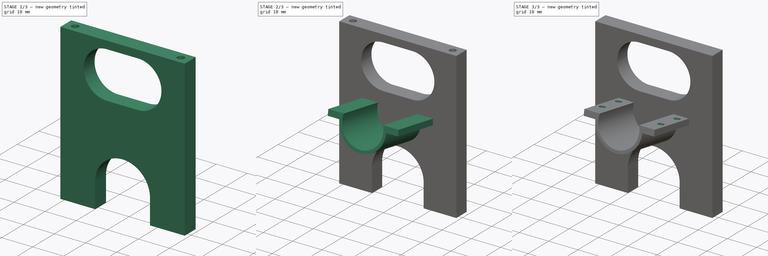
[diagram: build sequence overview — one tinted view per stage of 3, left to right]
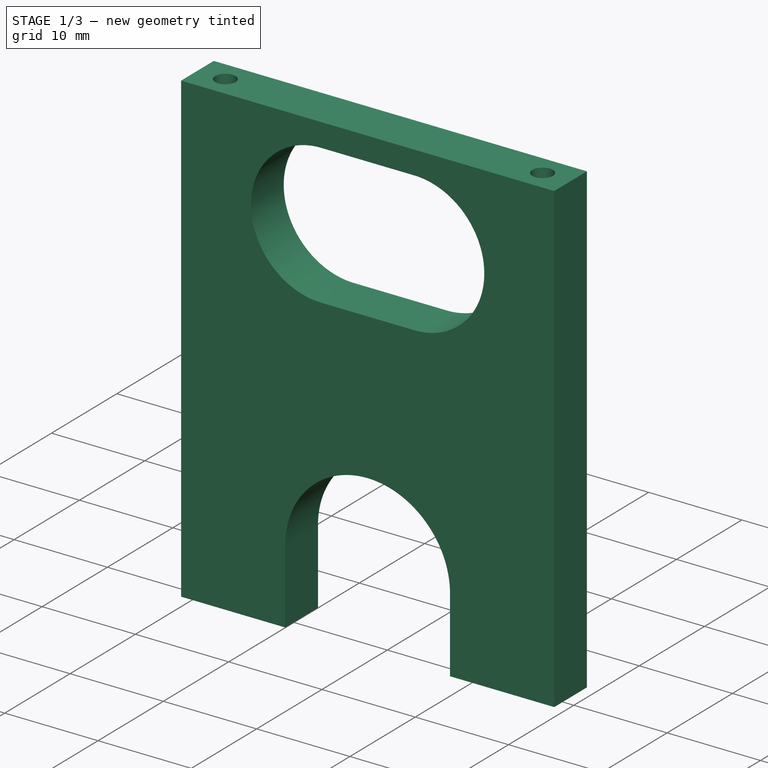
[diagram: stage 1 of 3 — iso view after this stage's code; geometry added in this stage tinted green]
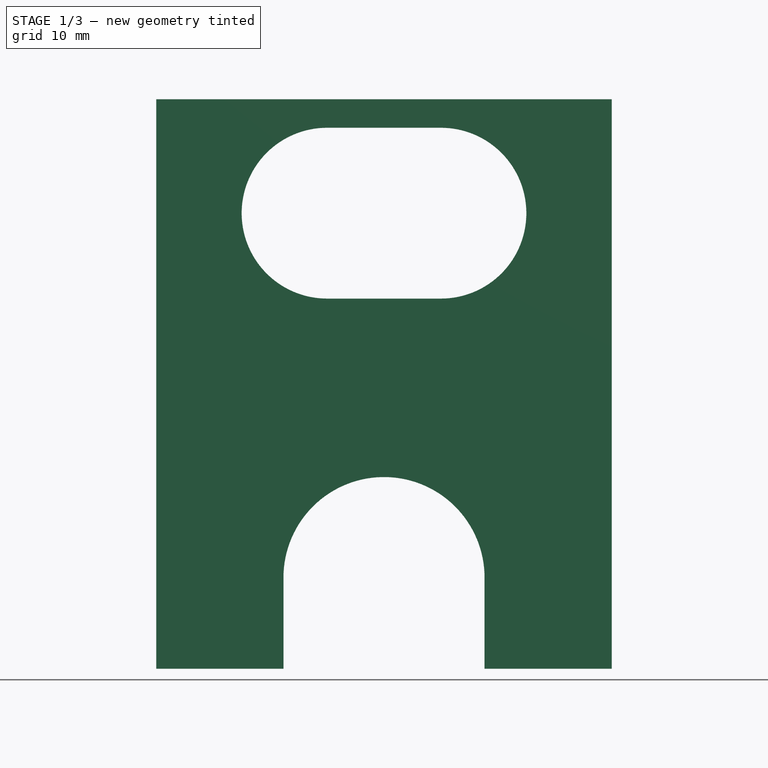
[diagram: stage 1 of 3 — front view after this stage's code; geometry added in this stage tinted green]
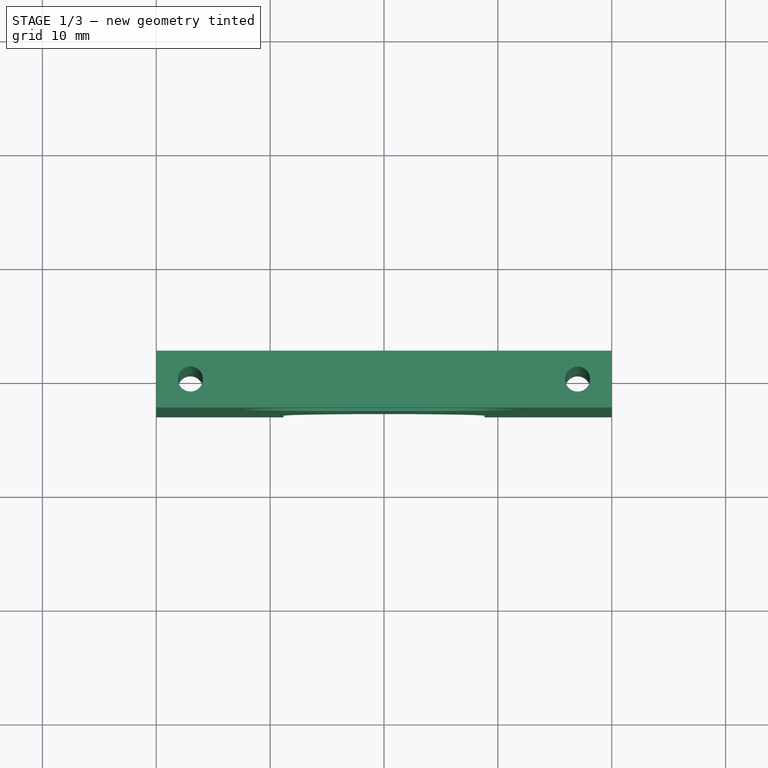
[diagram: stage 1 of 3 — top view after this stage's code; geometry added in this stage tinted green]
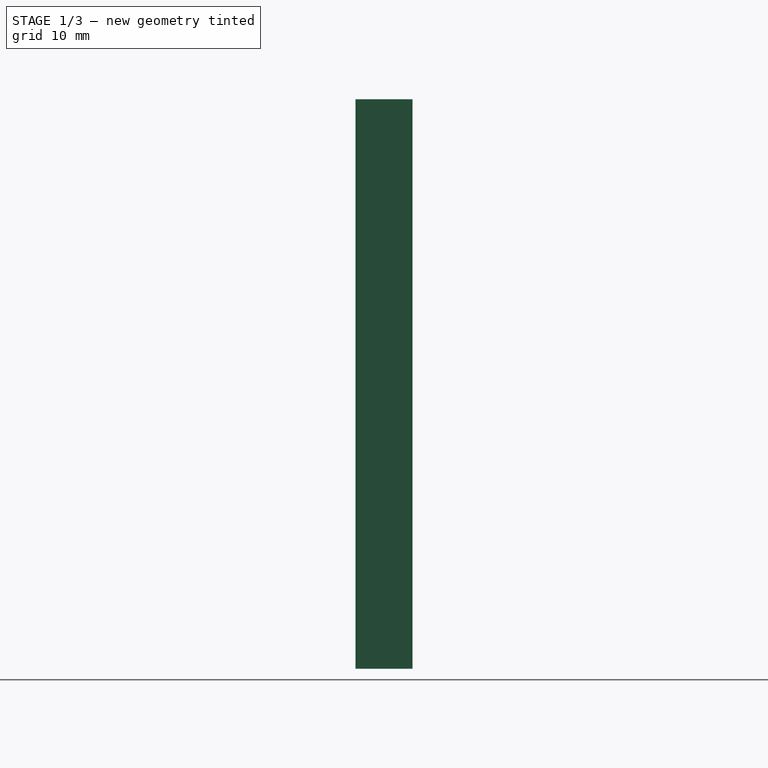
[diagram: stage 1 of 3 — right view after this stage's code; geometry added in this stage tinted green]
FCSTD DOCUMENT  (FreeCAD 0.15R4671 (Git))
Label: bracket3
License: All rights reserved
LicenseURL: http://en.wikipedia.org/wiki/All_rights_reserved
objects: Sketcher::SketchObject×7, PartDesign::Pocket×5, PartDesign::Pad×1, Part::Box×1, Part::Fuse×1
note: 21 computed .brp shape members not serialized (recipe doc carries the construction recipe); baked Part::Feature solids carry a one-line shape summary decoded from their .brp

FEATURE [Part::Box] Box  label="Cube"
  Height = 50
  Length = 40
  Placement = pos=(-20,-3,-28) rot=(0,0,1;0rad)
  Width = 5
FEATURE [Sketcher::SketchObject] Sketch004
  Placement = pos=(-20,-3,-28) rot=(1,0,0;1.5708rad)
  Support = -> Box [Face3]
FEATURE [Sketcher::SketchObject] Sketch005
  ExternalGeometry = -> [Box]
  Placement = pos=(-20,-3,-28) rot=(1,0,0;1.5708rad)
  Support = -> Box [Face3]
  sketch-geometry (11):
    g0: LineSegment [constr] StartX=20 StartY=50 StartZ=0 EndX=20 EndY=0 EndZ=0
    g1: LineSegment [constr] StartX=20 StartY=50 StartZ=0 EndX=0 EndY=50 EndZ=0
    g2: LineSegment [constr] StartX=20 StartY=50 StartZ=0 EndX=40 EndY=50 EndZ=0
    g3: ArcOfCircle CenterX=25 CenterY=40 CenterZ=0 NormalX=0 NormalY=0 NormalZ=1 Radius=7.5 StartAngle=4.71239 EndAngle=7.85398
    g4: ArcOfCircle CenterX=15 CenterY=40 CenterZ=0 NormalX=0 NormalY=0 NormalZ=1 Radius=7.5 StartAngle=1.5708 EndAngle=4.71239
    g5: LineSegment StartX=25 StartY=47.5 StartZ=0 EndX=15 EndY=47.5 EndZ=0
    g6: LineSegment StartX=25 StartY=32.5 StartZ=0 EndX=15 EndY=32.5 EndZ=0
    g7: ArcOfCircle CenterX=20 CenterY=8 CenterZ=0 NormalX=0 NormalY=0 NormalZ=1 Radius=8.82985 StartAngle=0 EndAngle=3.14159
    g8: LineSegment StartX=11.1701 StartY=8 StartZ=0 EndX=11.1701 EndY=0 EndZ=0
    g9: LineSegment StartX=11.1701 StartY=0 StartZ=0 EndX=28.8299 EndY=0 EndZ=0
    g10: LineSegment StartX=28.8299 StartY=8 StartZ=0 EndX=28.8299 EndY=0 EndZ=0
  constraints (32):
    c: PointOnObject(g0,g-1)
    c: Coincident(g1,g0)
    c: Horizontal(g1)
    c: Coincident(g2,g0)
    c: Horizontal(g2)
    c: Equal(g1,g2)
    c: PointOnObject(g1,g-2)
    c: Coincident(g2,g-3)
    c: Tangent(g3,g6) = 1.5708
    c: Tangent(g3,g5) = -1.5708
    c: Tangent(g5,g4) = -1.5708
    c: Tangent(g6,g4) = 1.5708
    c: Horizontal(g5)
    c: Equal(g3,g4)
    c: Symmetric(g4,g3,g0)
    c: Equal(g6,g5)
    c: Distance(g6) = 10
    c: Radius(g4) = 7.5
    c: DistanceY(g3,g0) = 10
    c: PointOnObject(g7,g0)
    c: Coincident(g8,g7)
    c: PointOnObject(g8,g-1)
    c: Vertical(g8)
    c: Coincident(g9,g8)
    c: PointOnObject(g9,g-1)
    c: Coincident(g10,g7)
    c: Coincident(g10,g9)
    c: Vertical(g10)
    c: Equal(g8,g10)
    c: Distance(g9) = 17.6597
    c: Angle(g7) = 3.14159
    c: Distance(g8) = 8
FEATURE [PartDesign::Pocket] Pocket003
  Length = 5
  Placement = pos=(-20,-3,-28) rot=(0,0,1;0rad)
  Sketch = -> Sketch005
  Type = 1
FEATURE [Sketcher::SketchObject] Sketch006
  ExternalGeometry = -> [Pocket003]
  Placement = pos=(-20,-3,22) rot=(0,0,1;0rad)
  Support = -> Pocket003 [Face3]
  sketch-geometry (4):
    g0: LineSegment [constr] StartX=20 StartY=5 StartZ=0 EndX=20 EndY=0 EndZ=0
    g1: LineSegment [constr] StartX=0 StartY=2.5 StartZ=0 EndX=40 EndY=2.5 EndZ=0
    g2: Circle CenterX=3 CenterY=2.5 CenterZ=0 NormalX=0 NormalY=0 NormalZ=1 Radius=1.1
    g3: Circle CenterX=37 CenterY=2.5 CenterZ=0 NormalX=0 NormalY=0 NormalZ=1 Radius=1.1
  constraints (14):
    c: Vertical(g0)
    c: DistanceX(g-1,g0) = 20
    c: Horizontal(g1)
    c: DistanceY(g-1,g1) = 2.5
    c: PointOnObject(g2,g1)
    c: PointOnObject(g3,g1)
    c: Symmetric(g2,g3,g0)
    c: DistanceX(g2,g3) = 34
    c: Equal(g2,g3)
    c: Radius(g2) = 1.1
    c: PointOnObject(g1,g-3)
    c: PointOnObject(g1,g-2)
    c: PointOnObject(g0,g-4)
    c: PointOnObject(g0,g-1)
FEATURE [PartDesign::Pocket] Pocket004
  Length = 5
  Placement = pos=(-20,-3,-28) rot=(0,0,1;0rad)
  Sketch = -> Sketch006
  Type = 1
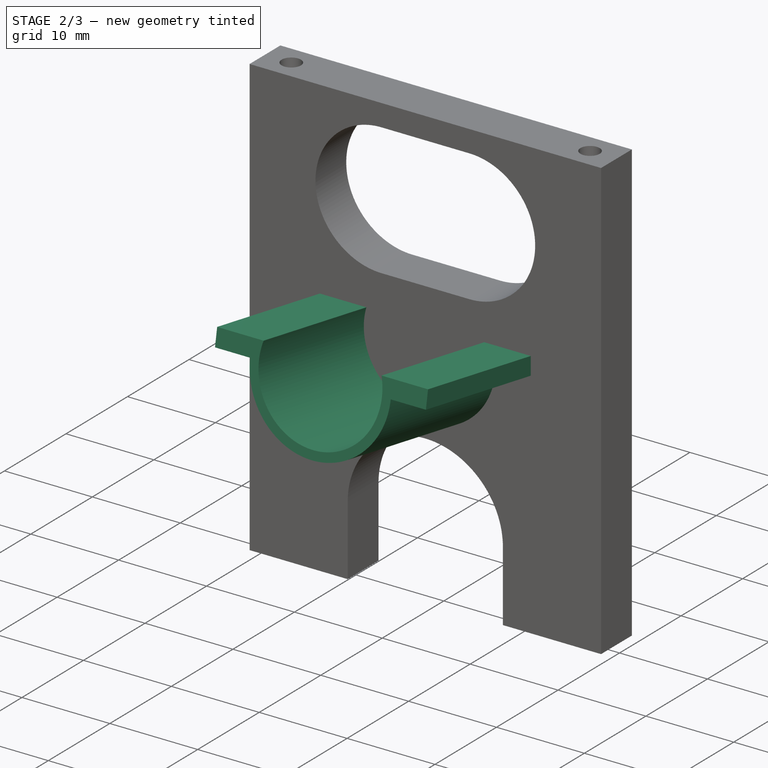
[diagram: stage 2 of 3 — iso view after this stage's code; geometry added in this stage tinted green]
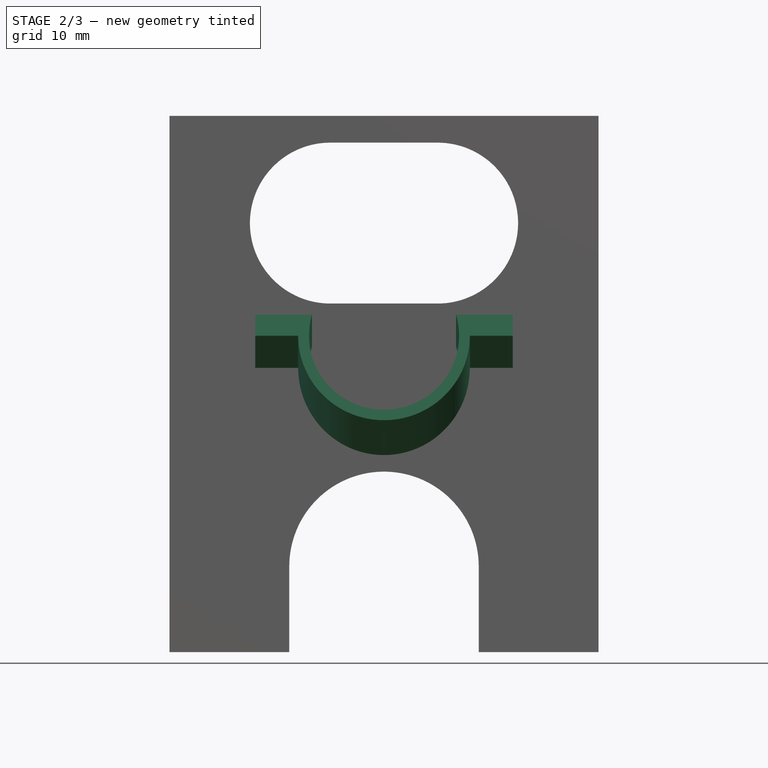
[diagram: stage 2 of 3 — front view after this stage's code; geometry added in this stage tinted green]
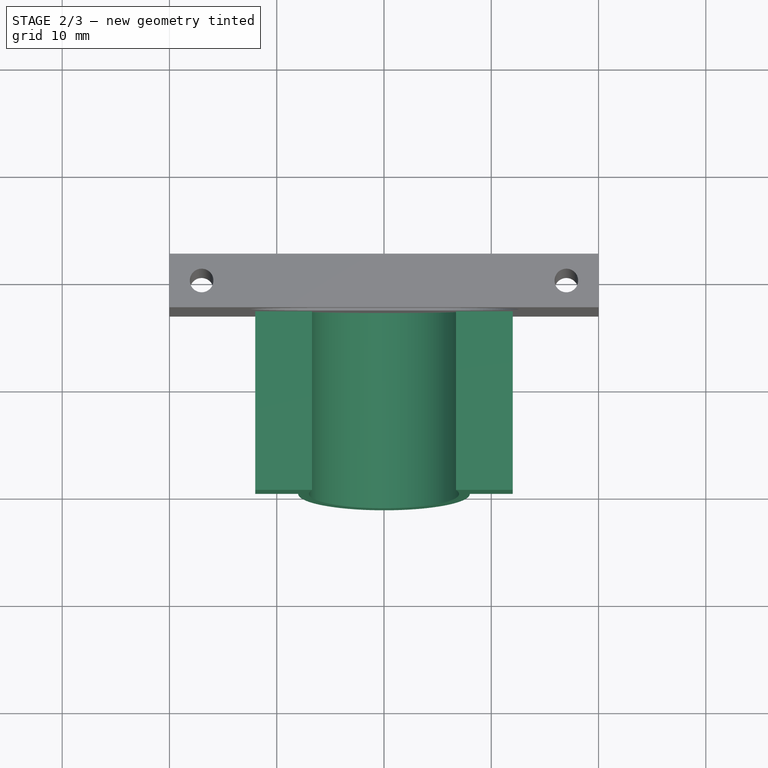
[diagram: stage 2 of 3 — top view after this stage's code; geometry added in this stage tinted green]
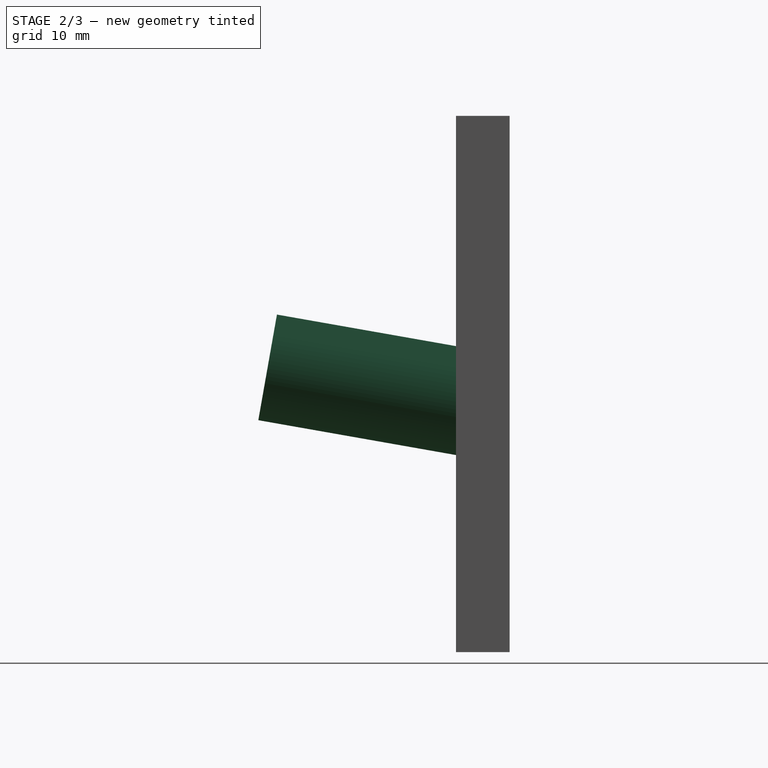
[diagram: stage 2 of 3 — right view after this stage's code; geometry added in this stage tinted green]
FEATURE [Sketcher::SketchObject] Sketch
  Placement = pos=(0,0,0) rot=(1,0,0;1.39626rad)
  sketch-geometry (6):
    g0: LineSegment StartX=-12 StartY=0 StartZ=0 EndX=-12 EndY=-2 EndZ=0
    g1: LineSegment StartX=-12 StartY=-2 StartZ=0 EndX=-8 EndY=-2 EndZ=0
    g2: LineSegment StartX=-12 StartY=0 StartZ=0 EndX=12 EndY=0 EndZ=0
    g3: LineSegment StartX=12 StartY=0 StartZ=0 EndX=12 EndY=-2 EndZ=0
    g4: LineSegment StartX=12 StartY=-2 StartZ=0 EndX=8 EndY=-2 EndZ=0
    g5: ArcOfCircle CenterX=0 CenterY=-2 CenterZ=0 NormalX=0 NormalY=0 NormalZ=1 Radius=8 StartAngle=3.14159 EndAngle=6.28319
  constraints (18):
    c: Vertical(g0)
    c: Coincident(g0,g1)
    c: Horizontal(g1)
    c: Coincident(g0,g2)
    c: Horizontal(g2)
    c: Coincident(g2,g3)
    c: Vertical(g3)
    c: Coincident(g3,g4)
    c: Horizontal(g4)
    c: Symmetric(g0,g2,g-2)
    c: Symmetric(g1,g4,g-2)
    c: Coincident(g5,g1)
    c: Coincident(g5,g4)
    c: Radius(g5) = 8
    c: Distance(g0) = 2
    c: PointOnObject(g5,g4)
    c: PointOnObject(g-1,g2)
    c: DistanceX(g-1,g0) = -12
FEATURE [PartDesign::Pad] Pad
  Length = 20
  Length2 = 100
  Placement = pos=(0,0,0) rot=(1,0,0;1.39626rad)
  Sketch = -> Sketch
  Type = 0
FEATURE [Sketcher::SketchObject] Sketch001
  ExternalGeometry = -> [Pad]
  Placement = pos=(0,-19.6962,3.47296) rot=(1,0,0;1.39626rad)
  Support = -> Pad [Face8]
  sketch-geometry (2):
    g0: ArcOfCircle CenterX=0 CenterY=-2 CenterZ=0 NormalX=0 NormalY=0 NormalZ=1 Radius=7 StartAngle=2.85184 EndAngle=6.57294
    g1: LineSegment StartX=-6.7082 StartY=-2e-12 StartZ=0 EndX=6.7082 EndY=-4e-12 EndZ=0
  constraints (7):
    c: PointOnObject(g0,g-2)
    c: PointOnObject(g0,g-1)
    c: PointOnObject(g0,g-1)
    c: Radius(g0) = 7
    c: PointOnObject(g0,g-3)
    c: Coincident(g1,g0)
    c: Coincident(g1,g0)
FEATURE [PartDesign::Pocket] Pocket
  Length = 5
  Placement = pos=(0,0,0) rot=(1,0,0;1.39626rad)
  Sketch = -> Sketch001
  Type = 1
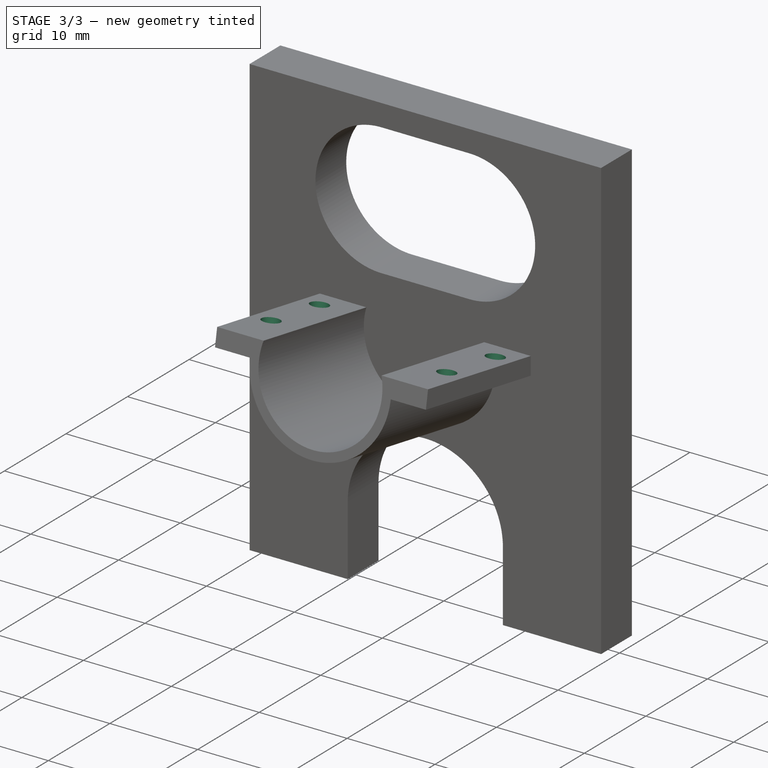
[diagram: stage 3 of 3 — iso view after this stage's code; geometry added in this stage tinted green]
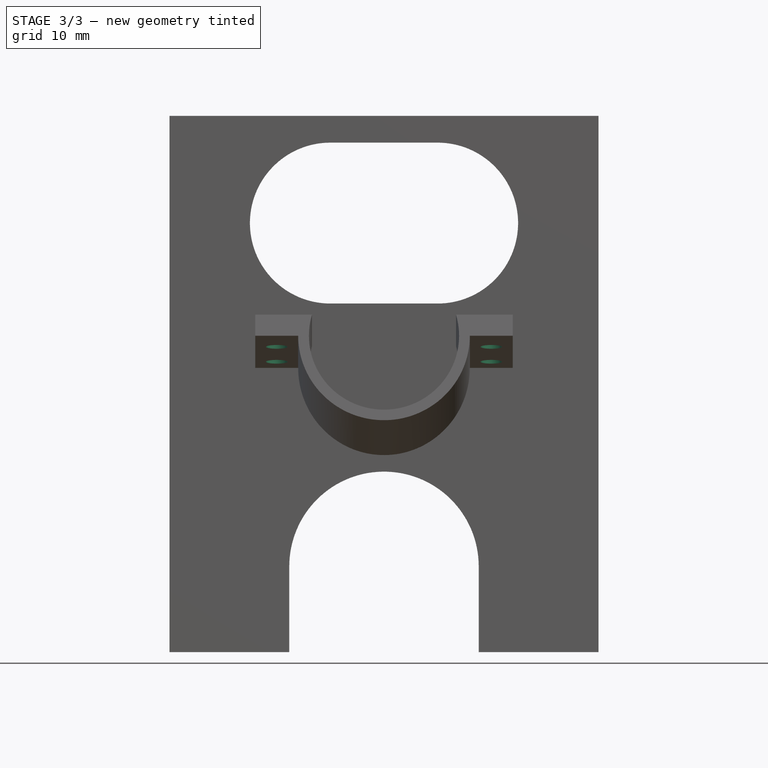
[diagram: stage 3 of 3 — front view after this stage's code; geometry added in this stage tinted green]
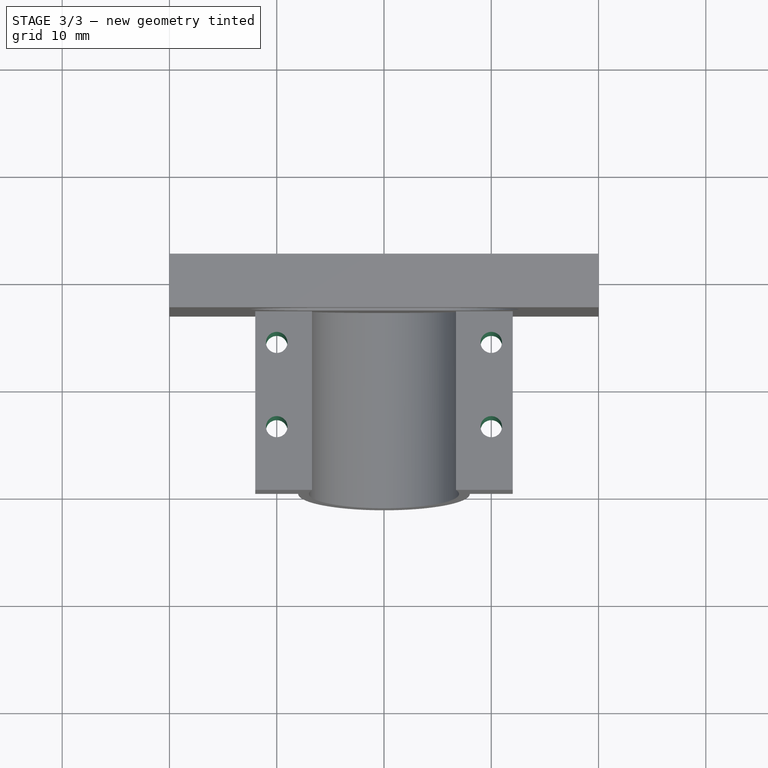
[diagram: stage 3 of 3 — top view after this stage's code; geometry added in this stage tinted green]
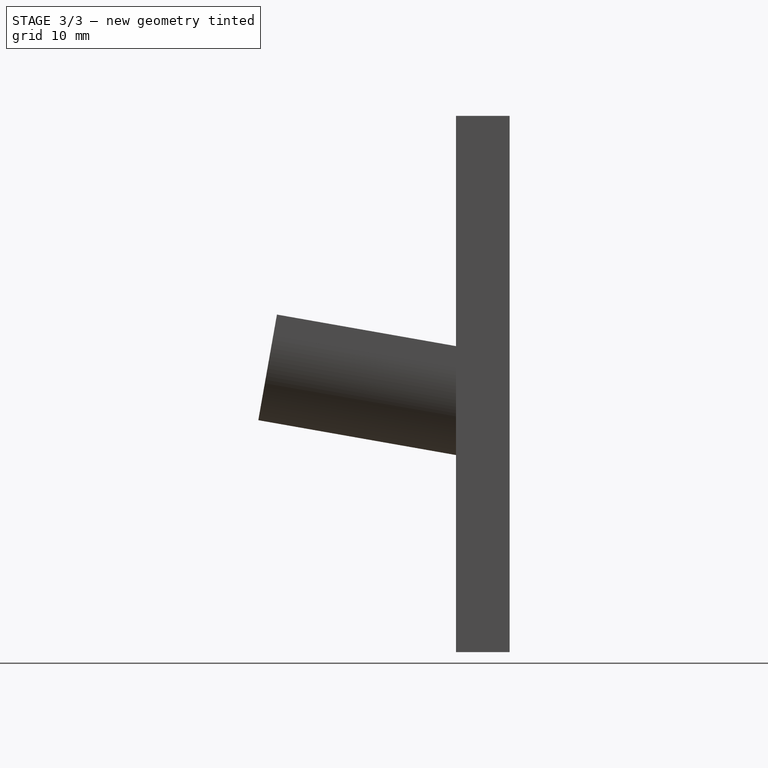
[diagram: stage 3 of 3 — right view after this stage's code; geometry added in this stage tinted green]
FEATURE [Sketcher::SketchObject] Sketch002
  ExternalGeometry = -> [Pocket]
  Placement = pos=(0,-0.347296,-1.96962) rot=(1,0,0;2.96706rad)
  Support = -> Pocket [Face3]
  sketch-geometry (10):
    g0: LineSegment [constr] StartX=-10 StartY=14 StartZ=0 EndX=-10 EndY=6 EndZ=0
    g1: LineSegment [constr] StartX=10 StartY=14 StartZ=0 EndX=10 EndY=6 EndZ=0
    g2: LineSegment [constr] StartX=-10 StartY=6 StartZ=0 EndX=-10 EndY=0 EndZ=0
    g3: LineSegment [constr] StartX=-10 StartY=14 StartZ=0 EndX=-10 EndY=20 EndZ=0
    g4: LineSegment [constr] StartX=-10 StartY=6 StartZ=0 EndX=-8 EndY=6 EndZ=0
    g5: LineSegment [constr] StartX=-10 StartY=6 StartZ=0 EndX=-12 EndY=6 EndZ=0
    g6: Circle CenterX=-10 CenterY=14 CenterZ=0 NormalX=0 NormalY=0 NormalZ=1 Radius=1
    g7: Circle CenterX=-10 CenterY=6 CenterZ=0 NormalX=0 NormalY=0 NormalZ=1 Radius=1
    g8: Circle CenterX=10 CenterY=14 CenterZ=0 NormalX=0 NormalY=0 NormalZ=1 Radius=1
    g9: Circle CenterX=10 CenterY=6 CenterZ=0 NormalX=0 NormalY=0 NormalZ=1 Radius=1
  constraints (27):
    c: Vertical(g0)
    c: Vertical(g1)
    c: Symmetric(g0,g1,g-2)
    c: Equal(g0,g1)
    c: Coincident(g2,g0)
    c: PointOnObject(g2,g-1)
    c: Vertical(g2)
    c: Coincident(g3,g0)
    c: PointOnObject(g3,g-3)
    c: Vertical(g3)
    c: Equal(g3,g2)
    c: Coincident(g4,g0)
    c: PointOnObject(g4,g-5)
    c: Horizontal(g4)
    c: Coincident(g5,g0)
    c: PointOnObject(g5,g-4)
    c: Horizontal(g5)
    c: Equal(g5,g4)
    c: Distance(g2) = 6
    c: Coincident(g6,g0)
    c: Radius(g6) = 1
    c: Coincident(g7,g0)
    c: Coincident(g8,g1)
    c: Coincident(g9,g1)
    c: Equal(g6,g7)
    c: Equal(g7,g9)
    c: Equal(g9,g8)
FEATURE [PartDesign::Pocket] Pocket001
  Length = 5
  Placement = pos=(0,0,0) rot=(1,0,0;1.39626rad)
  Sketch = -> Sketch002
  Type = 1
FEATURE [Sketcher::SketchObject] Sketch003
  Placement = pos=(12,0,0) rot=(0.705758,0.061746,0.705758;3.01826rad)
  Support = -> Pocket001 [Face11]
  sketch-geometry (3):
    g0: LineSegment StartX=-10 StartY=0 StartZ=0 EndX=0 EndY=1.76327 EndZ=0
    g1: LineSegment StartX=-10 StartY=0 StartZ=0 EndX=0 EndY=0 EndZ=0
    g2: LineSegment StartX=0 StartY=1.76327 StartZ=0 EndX=0 EndY=0 EndZ=0
  constraints (8):
    c: PointOnObject(g0,g-1)
    c: PointOnObject(g0,g-2)
    c: Angle(g0,g-1) = 2.96706
    c: Coincident(g1,g0)
    c: Coincident(g1,g-1)
    c: Coincident(g2,g0)
    c: Coincident(g2,g-1)
    c: Distance(g1) = 10
FEATURE [PartDesign::Pocket] Pocket002
  Length = 5
  Placement = pos=(0,0,0) rot=(1,0,0;1.39626rad)
  Sketch = -> Sketch003
  Type = 1
FEATURE [Part::Fuse] Fusion001
  Base = -> Pocket002
  Tool = -> Pocket003
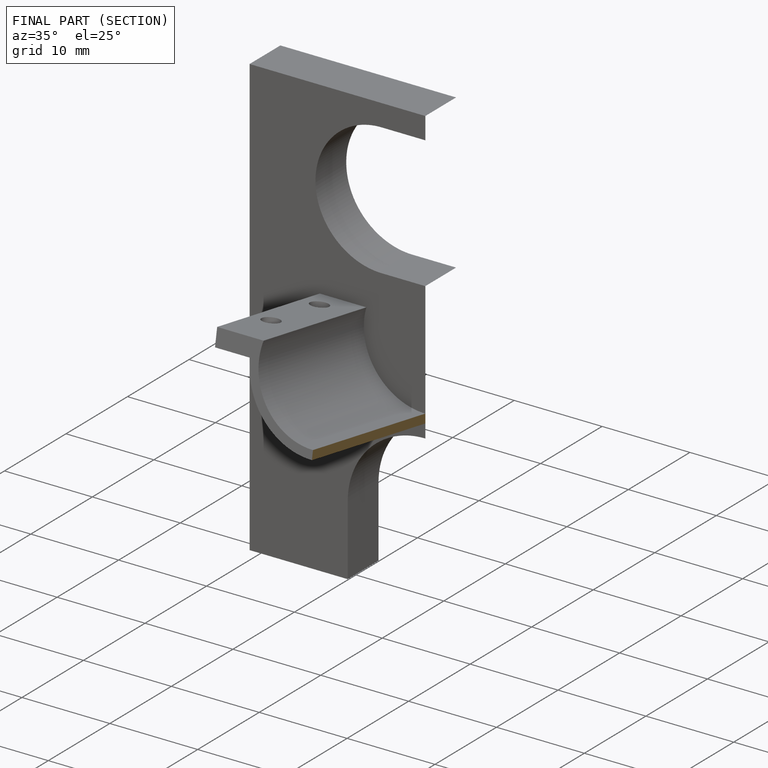
[diagram: finished part — half-section view (interior)]
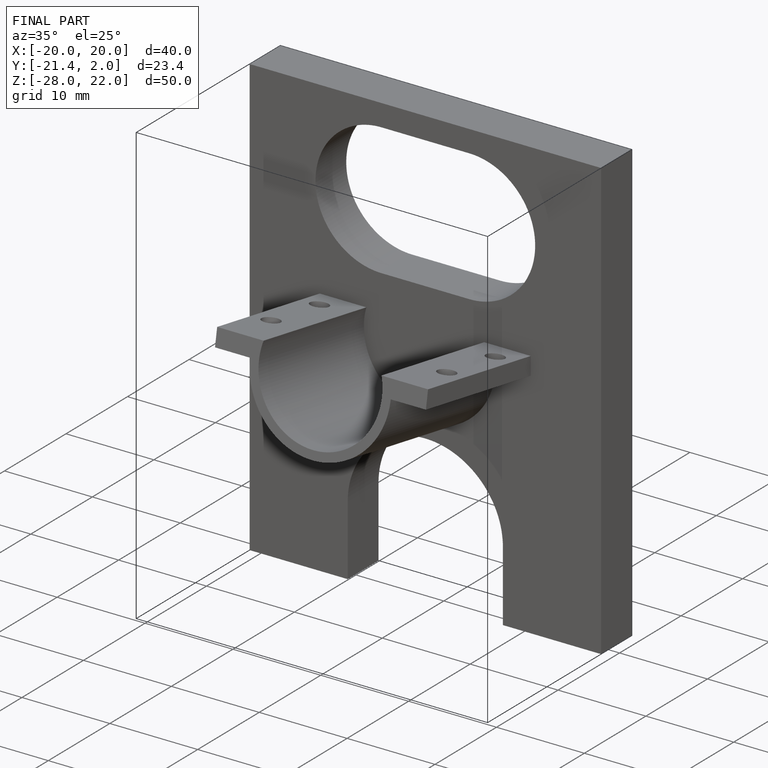
[diagram: finished part — iso view with bounding-box wireframe]
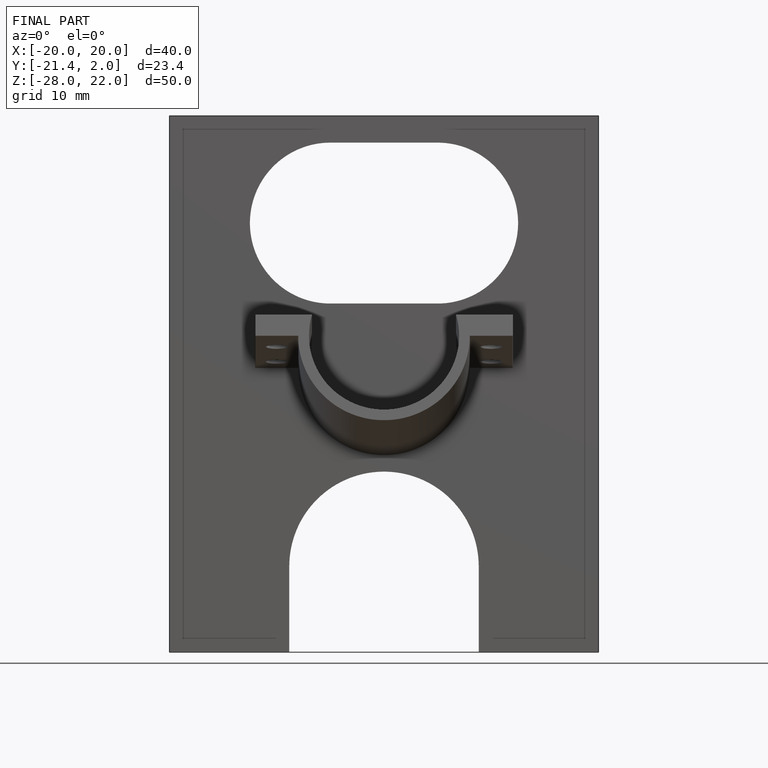
[diagram: finished part — front view with bounding-box wireframe]
